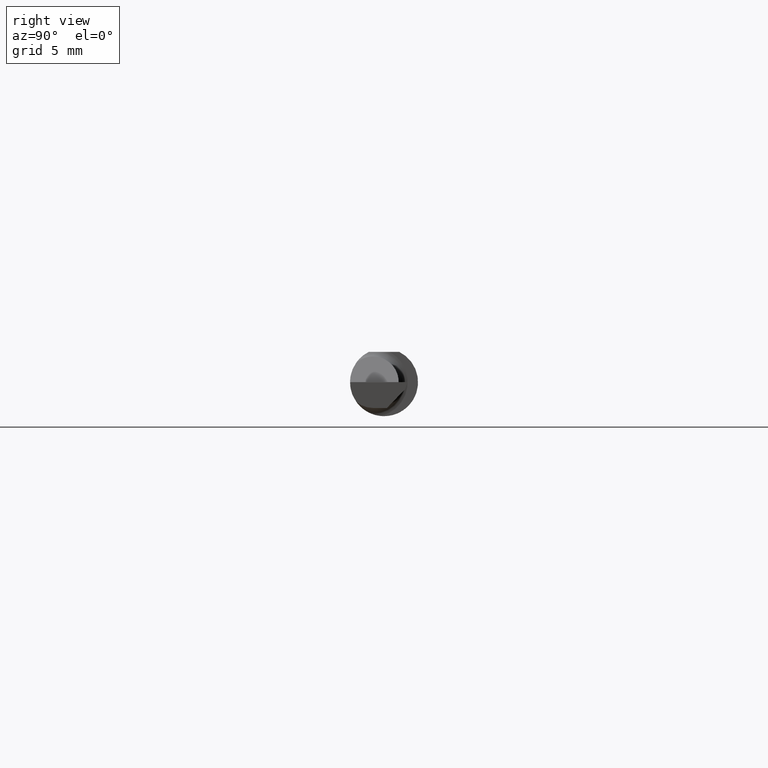
[diagram: clean part render]
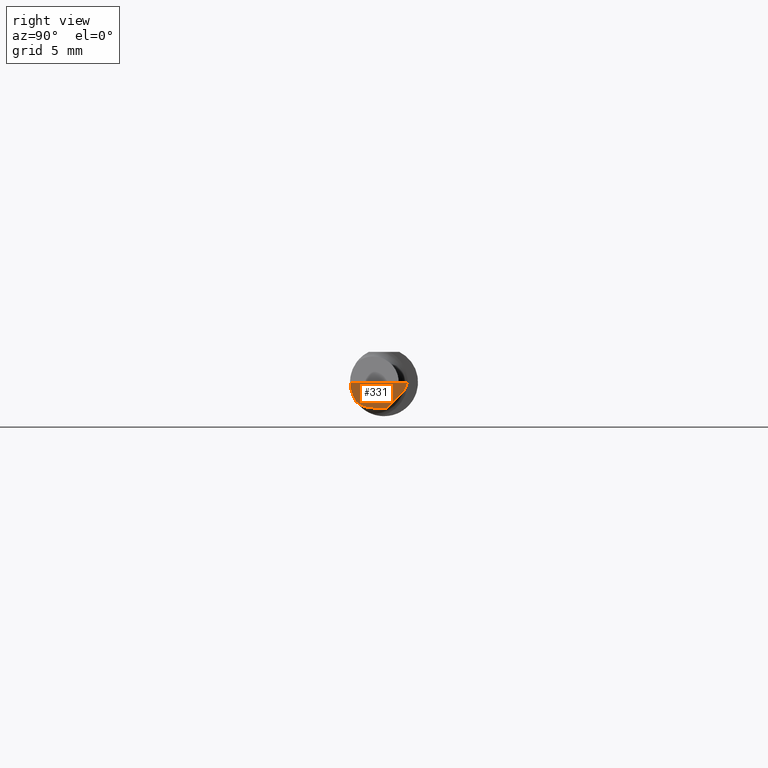
[diagram: same view with one face highlighted and labeled with its STEP entity id]
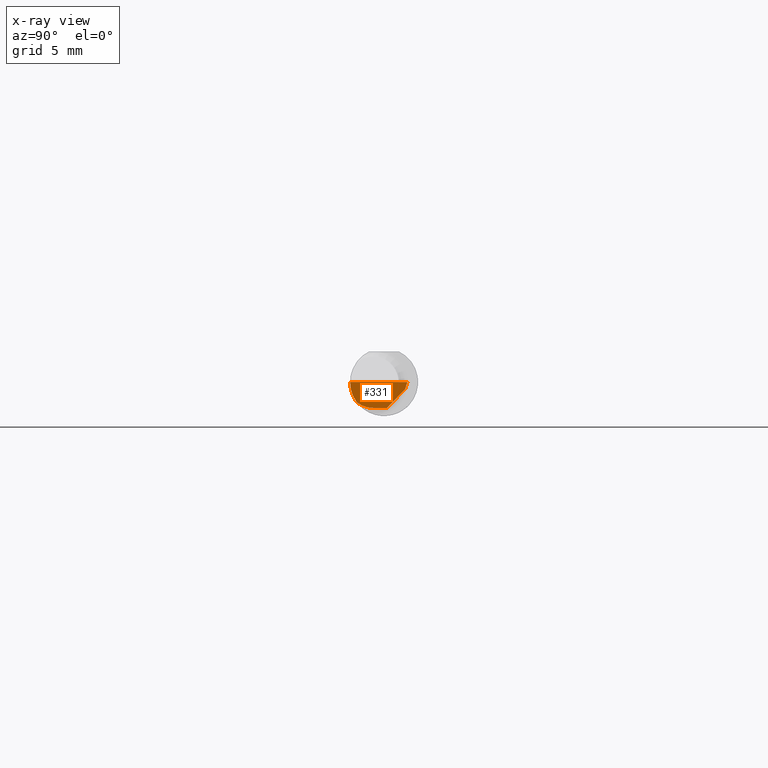
[diagram: x-ray of the same camera — body ghosted, the highlighted face saturated]
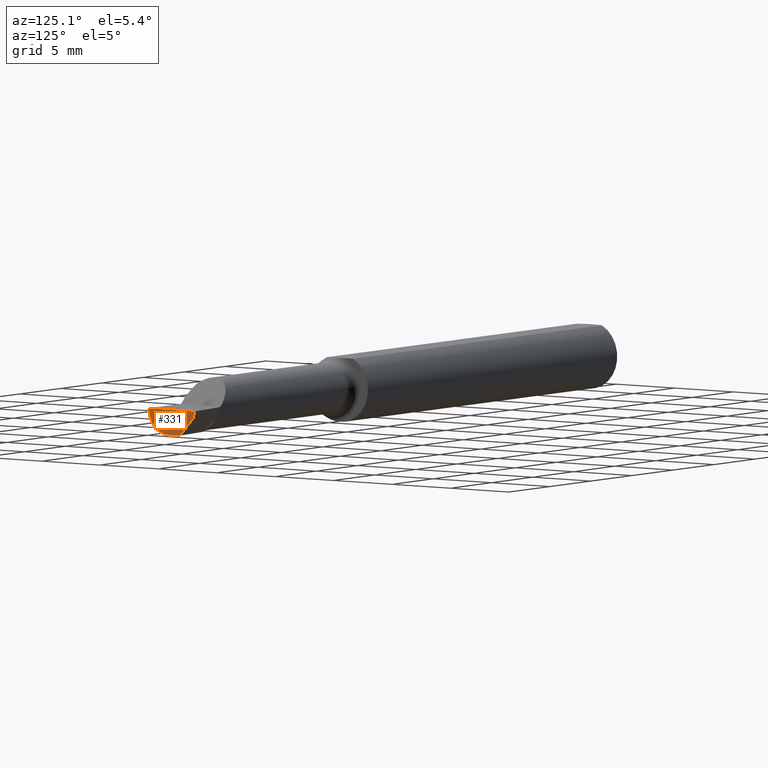
[diagram: same view with one face highlighted and labeled with its STEP entity id]
A machine part, right view. The second image highlights one B-rep face of the part: STEP entity #331.
The next image is the same camera in x-ray: the body ghosted, the highlighted face saturated — about 0% of this face is hidden behind the body in this view.
A second angle (auxiliary view) of the same face is appended — the face is thin or edge-on in the first view.
In plain terms, the highlighted planar face has unit normal (0.9922, -0.026, -0.1219).
Its self-contained STEP definition (entity closure, byte-faithful):
#1 = CARTESIAN_POINT ( 'NONE',  ( 1.989625015145393139, -0.07608366013071823919, -0.05451822320209416539 ) ) ;
#5 = ORIENTED_EDGE ( 'NONE', *, *, #46, .F. ) ;
#21 = LINE ( 'NONE', #230, #22 ) ;
#22 = VECTOR ( 'NONE', #451, 39.37007874015748143 ) ;
#27 = CARTESIAN_POINT ( 'NONE',  ( 1.989625015145393139, -0.07608366013071823919, -0.05451822320209416539 ) ) ;
#33 = ORIENTED_EDGE ( 'NONE', *, *, #131, .T. ) ;
#40 = ORIENTED_EDGE ( 'NONE', *, *, #228, .T. ) ;
#46 = EDGE_CURVE ( 'NONE', #212, #494, #362, .T. ) ;
#47 = CARTESIAN_POINT ( 'NONE',  ( 1.988641161029047755, -0.06318680184005832923, -0.06527786071030766690 ) ) ;
#52 = VECTOR ( 'NONE', #259, 39.37007874015748143 ) ;
#68 = DIRECTION ( 'NONE',  ( 0.1240019227989323097, 0.3022330132596648400, 0.9451342385281314984 ) ) ;
#72 = CARTESIAN_POINT ( 'NONE',  ( 1.995862624392068074, -0.09360000000000009979, -6.605666309584466665E-17 ) ) ;
#84 = ORIENTED_EDGE ( 'NONE', *, *, #279, .T. ) ;
#91 = EDGE_LOOP ( 'NONE', ( #40, #5, #84, #216, #580, #33 ) ) ;
#119 = CARTESIAN_POINT ( 'NONE',  ( 1.991292915001084296, -0.08756847698997996532, -0.03849042825095482651 ) ) ;
#131 = EDGE_CURVE ( 'NONE', #390, #307, #219, .T. ) ;
#146 = CARTESIAN_POINT ( 'NONE',  ( 1.995862624392068074, -0.09360000000000009979, -6.605666309584466665E-17 ) ) ;
#181 = CARTESIAN_POINT ( 'NONE',  ( 1.987153287650113009, -0.009717623157798383621, -0.08879077981909570816 ) ) ;
#212 = VERTEX_POINT ( 'NONE', #233 ) ;
#216 = ORIENTED_EDGE ( 'NONE', *, *, #583, .T. ) ;
#219 = LINE ( 'NONE', #404, #52 ) ;
#225 = DIRECTION ( 'NONE',  ( 0.1053106618241779063, 0.6976485211320171409, 0.7086580314005218595 ) ) ;
#228 = EDGE_CURVE ( 'NONE', #307, #494, #407, .T. ) ;
#230 = CARTESIAN_POINT ( 'NONE',  ( 1.988799325593724632, -0.03030670001847553252, -0.07100000000000021572 ) ) ;
#233 = CARTESIAN_POINT ( 'NONE',  ( 1.988791645263412011, -0.03060000000000022424, -0.07100000000000021572 ) ) ;
#235 = EDGE_CURVE ( 'NONE', #289, #390, #499, .T. ) ;
#241 = FACE_OUTER_BOUND ( 'NONE', #91, .T. ) ;
#259 = DIRECTION ( 'NONE',  ( -0.02617694830786939167, -0.9996573249755573709, 1.459184416195897376E-17 ) ) ;
#271 = CARTESIAN_POINT ( 'NONE',  ( 1.989254605881537685, 0.03820997996013979214, -0.08190066459133922561 ) ) ;
#279 = EDGE_CURVE ( 'NONE', #212, #509, #21, .T. ) ;
#289 = VERTEX_POINT ( 'NONE', #543 ) ;
#300 = CARTESIAN_POINT ( 'NONE',  ( 1.989625015145393139, -0.07608366013071823919, -0.05451822320209416539 ) ) ;
#307 = VERTEX_POINT ( 'NONE', #146 ) ;
#309 = LINE ( 'NONE', #181, #426 ) ;
#330 = CARTESIAN_POINT ( 'NONE',  ( 2.075578470192265268, -0.1475581462076027695, 0.6605145482336969298 ) ) ;
#331 = ADVANCED_FACE ( 'NONE', ( #241 ), #609, .T. ) ;
#336 = DIRECTION ( 'NONE',  ( 0.9922060308645480609, -0.02598182930468958748, -0.1218693434051461438 ) ) ;
#362 =( BOUNDED_CURVE ( )  B_SPLINE_CURVE ( 3, ( #484, #588, #47, #1 ),
 .UNSPECIFIED., .F., .T. ) 
 B_SPLINE_CURVE_WITH_KNOTS ( ( 4, 4 ),
 ( 6.073135862899447623, 6.768434696801360673 ),
 .UNSPECIFIED. ) 
 CURVE ( )  GEOMETRIC_REPRESENTATION_ITEM ( )  RATIONAL_B_SPLINE_CURVE ( ( 1.000000000000000000, 0.9601174178332940734, 0.9601174178332940734, 1.000000000000000000 ) ) 
 REPRESENTATION_ITEM ( '' )  );
#387 = CARTESIAN_POINT ( 'NONE',  ( 1.989797099917948842, 0.007796764149783562588, -0.07100000000000021572 ) ) ;
#390 = VERTEX_POINT ( 'NONE', #432 ) ;
#404 = CARTESIAN_POINT ( 'NONE',  ( 1.991772787678609324, -0.2497845628634190740, -6.377686106282058433E-17 ) ) ;
#407 =( BOUNDED_CURVE ( )  B_SPLINE_CURVE ( 3, ( #72, #600, #119, #27 ),
 .UNSPECIFIED., .F., .F. ) 
 B_SPLINE_CURVE_WITH_KNOTS ( ( 4, 4 ),
 ( 4.922438424664829171, 5.544189768309970567 ),
 .UNSPECIFIED. ) 
 CURVE ( )  GEOMETRIC_REPRESENTATION_ITEM ( )  RATIONAL_B_SPLINE_CURVE ( ( 1.000000000000000000, 0.9680440490283178656, 0.9680440490283178656, 1.000000000000000000 ) ) 
 REPRESENTATION_ITEM ( '' )  );
#426 = VECTOR ( 'NONE', #225, 39.37007874015748143 ) ;
#432 = CARTESIAN_POINT ( 'NONE',  ( 2.000000000000004441, 0.06440000000001348812, 4.278756920076652249E-14 ) ) ;
#451 = DIRECTION ( 'NONE',  ( 0.02617694830786939167, 0.9996573249755573709, -4.246274422243602914E-17 ) ) ;
#484 = CARTESIAN_POINT ( 'NONE',  ( 1.988791645263412011, -0.03060000000000022424, -0.07100000000000021572 ) ) ;
#494 = VERTEX_POINT ( 'NONE', #300 ) ;
#499 = LINE ( 'NONE', #271, #561 ) ;
#508 = DIRECTION ( 'NONE',  ( -0.1219104985252815604, 0.000000000000000000, -0.9925410975618679243 ) ) ;
#509 = VERTEX_POINT ( 'NONE', #387 ) ;
#530 = AXIS2_PLACEMENT_3D ( 'NONE', #330, #336, #508 ) ;
#543 = CARTESIAN_POINT ( 'NONE',  ( 1.997375993425186458, 0.05800444260848398176, -0.02000000000000000042 ) ) ;
#561 = VECTOR ( 'NONE', #68, 39.37007874015748854 ) ;
#580 = ORIENTED_EDGE ( 'NONE', *, *, #235, .T. ) ;
#583 = EDGE_CURVE ( 'NONE', #509, #289, #309, .T. ) ;
#588 = CARTESIAN_POINT ( 'NONE',  ( 1.988351831874612508, -0.04739579569646898416, -0.07100000000000017408 ) ) ;
#600 = CARTESIAN_POINT ( 'NONE',  ( 1.993440754331651910, -0.09359999999999998876, -0.01971778966533907149 ) ) ;
#609 = PLANE ( 'NONE',  #530 ) ;